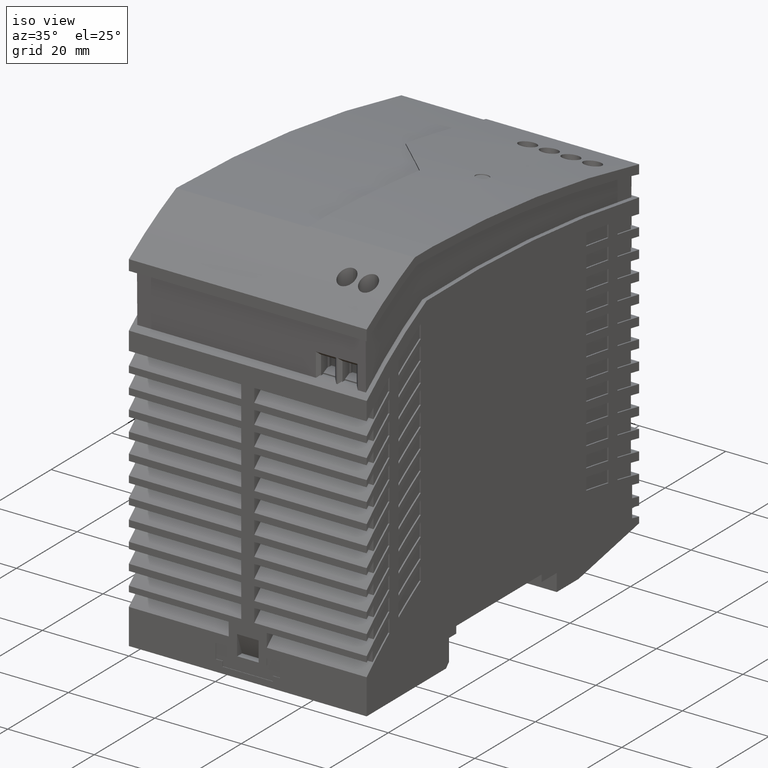
[diagram: clean part render]
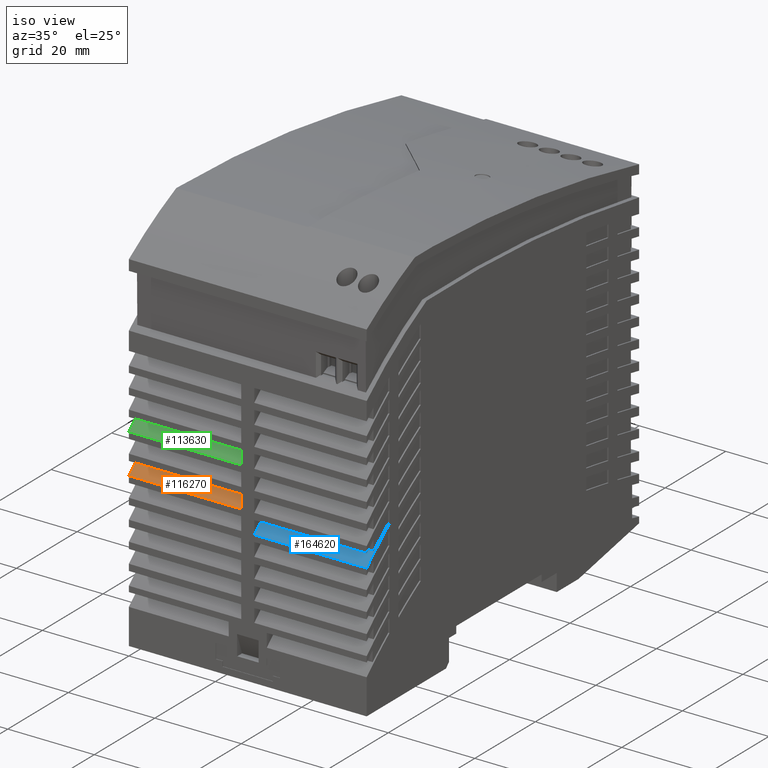
[diagram: same view with three faces highlighted in distinct colors, each labeled with its STEP entity id]
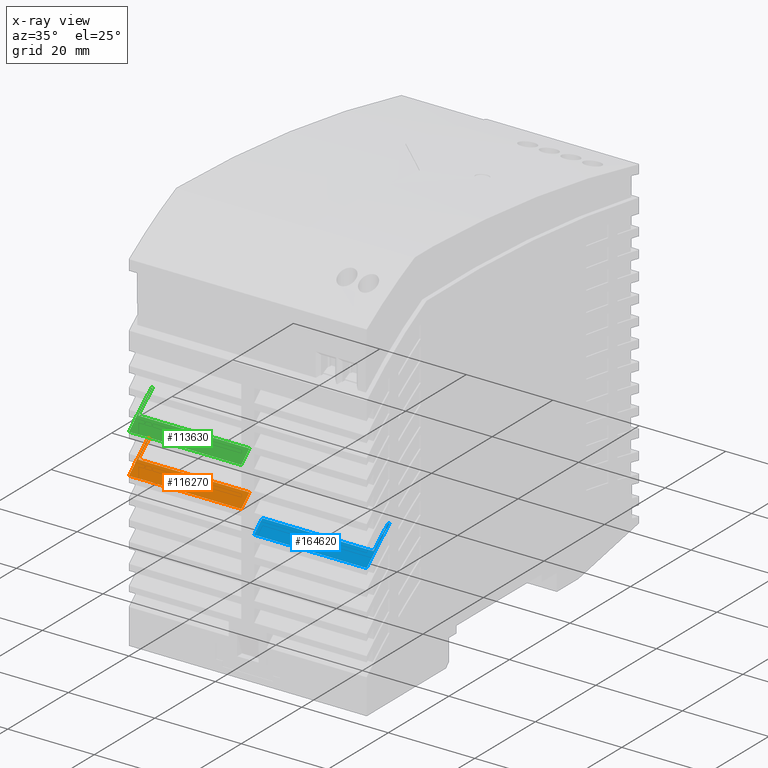
[diagram: x-ray of the same camera — body ghosted, the three highlighted faces saturated]
A machine part, iso view with three faces highlighted in distinct colors.
The next image is the same camera in x-ray (body ghosted, the three faces saturated) — at least one of them is partly hidden behind the body in this view.
Their STEP definitions:

[orange] entity #116270 — the highlighted cylindrical surface (partial cylindrical patch) has radius 111 mm, axis along (1, 0, 0).
#14500=CARTESIAN_POINT('',(30.4869845880775,-45.759020585182,-54.));
#14510=DIRECTION('',(0.,0.,1.));
#14520=DIRECTION('',(0.,1.,0.));
#14530=AXIS2_PLACEMENT_3D('',#14500,#14510,#14520);
#14540=CIRCLE('',#14530,110.999999999991);
#20450=CARTESIAN_POINT('',(-37.4715236073768,42.0056714261642,-54.));
#20460=VERTEX_POINT('',#20450);
#20490=CARTESIAN_POINT('',(-45.0015236073532,35.6196322079584,-54.));
#20500=VERTEX_POINT('',#20490);
#20510=EDGE_CURVE('',#20460,#20500,#14540,.T.);
#115270=CARTESIAN_POINT('',(-37.4715236073768,42.0056714261642,-53.7));
#115280=VERTEX_POINT('',#115270);
#115440=CARTESIAN_POINT('',(-42.3015236073671,38.0433246963183,-53.7));
#115450=VERTEX_POINT('',#115440);
#115480=CARTESIAN_POINT('',(30.4869845880775,-45.759020585182,-53.7));
#115490=DIRECTION('',(0.,0.,1.));
#115500=DIRECTION('',(0.,1.,0.));
#115510=AXIS2_PLACEMENT_3D('',#115480,#115490,#115500);
#115520=CIRCLE('',#115510,110.999999999991);
#115530=EDGE_CURVE('',#115280,#115450,#115520,.T.);
#115710=CARTESIAN_POINT('',(-37.4715236073768,42.0056714261642,-53.7));
#115720=DIRECTION('',(0.,0.,-1.));
#115730=VECTOR('',#115720,1.);
#115740=LINE('',#115710,#115730);
#115750=EDGE_CURVE('',#115280,#20460,#115740,.T.);
#115940=CARTESIAN_POINT('',(30.4869845880775,-45.759020585182,-53.7));
#115950=DIRECTION('',(0.,0.,1.));
#115960=DIRECTION('',(0.,1.,0.));
#115970=AXIS2_PLACEMENT_3D('',#115940,#115950,#115960);
#115980=CYLINDRICAL_SURFACE('',#115970,110.999999999991);
#115990=ORIENTED_EDGE('',*,*,#20510,.T.);
#116000=ORIENTED_EDGE('',*,*,#115750,.T.);
#116010=ORIENTED_EDGE('',*,*,#115530,.F.);
#116020=CARTESIAN_POINT('',(-42.3015236073671,38.0433246963183,-28.));
#116030=DIRECTION('',(0.,0.,-1.));
#116040=VECTOR('',#116030,1.);
#116050=LINE('',#116020,#116040);
#116060=CARTESIAN_POINT('',(-42.3015236073671,38.0433246963183,-28.));
#116070=VERTEX_POINT('',#116060);
#116080=EDGE_CURVE('',#116070,#115450,#116050,.T.);
#116090=ORIENTED_EDGE('',*,*,#116080,.T.);
#116100=CARTESIAN_POINT('',(30.4869845880775,-45.759020585182,-28.));
#116110=DIRECTION('',(0.,0.,1.));
#116120=DIRECTION('',(0.,1.,0.));
#116130=AXIS2_PLACEMENT_3D('',#116100,#116110,#116120);
#116140=CIRCLE('',#116130,110.999999999991);
#116150=CARTESIAN_POINT('',(-45.0015236073532,35.6196322079584,-28.));
#116160=VERTEX_POINT('',#116150);
#116170=EDGE_CURVE('',#116070,#116160,#116140,.T.);
#116180=ORIENTED_EDGE('',*,*,#116170,.F.);
#116190=CARTESIAN_POINT('',(-45.0015236073532,35.6196322079584,-25.));
#116200=DIRECTION('',(0.,0.,1.));
#116210=VECTOR('',#116200,1.);
#116220=LINE('',#116190,#116210);
#116230=EDGE_CURVE('',#20500,#116160,#116220,.T.);
#116240=ORIENTED_EDGE('',*,*,#116230,.T.);
#116250=EDGE_LOOP('',(#116240,#116180,#116090,#116010,#116000,#115990));
#116260=FACE_OUTER_BOUND('',#116250,.T.);
#116270=ADVANCED_FACE('',(#116260),#115980,.T.);

[blue] entity #164620 — the highlighted cylindrical surface (partial cylindrical patch) has radius 111 mm, axis along (1, 0, 0).
#46980=CARTESIAN_POINT('',(-45.0015236073532,31.0196322079584,1.));
#46990=VERTEX_POINT('',#46980);
#47020=CARTESIAN_POINT('',(30.4869845880943,-50.3590205852021,1.));
#47030=DIRECTION('',(0.,0.,1.));
#47040=DIRECTION('',(0.,1.,0.));
#47050=AXIS2_PLACEMENT_3D('',#47020,#47030,#47040);
#47060=CIRCLE('',#47050,111.000000000018);
#47070=CARTESIAN_POINT('',(-37.4715236073768,37.4056714261642,1.));
#47080=VERTEX_POINT('',#47070);
#47090=EDGE_CURVE('',#47080,#46990,#47060,.T.);
#122970=CARTESIAN_POINT('',(-45.0015236073532,31.0196322079584,-25.));
#122980=DIRECTION('',(0.,0.,1.));
#122990=VECTOR('',#122980,1.);
#123000=LINE('',#122970,#122990);
#157380=CARTESIAN_POINT('',(-42.3015236073671,33.4433246963183,-25.));
#157390=DIRECTION('',(0.,0.,1.));
#157400=VECTOR('',#157390,1.);
#157410=LINE('',#157380,#157400);
#157420=CARTESIAN_POINT('',(-42.3015236073671,33.4433246963182,-25.));
#157430=VERTEX_POINT('',#157420);
#157440=CARTESIAN_POINT('',(-42.3015236073671,33.4433246963183,
0.700000000000003));
#157450=VERTEX_POINT('',#157440);
#157460=EDGE_CURVE('',#157430,#157450,#157410,.T.);
#161540=CARTESIAN_POINT('',(-45.0015236073532,31.0196322079584,-25.));
#161550=VERTEX_POINT('',#161540);
#161580=EDGE_CURVE('',#161550,#46990,#123000,.T.);
#164180=CARTESIAN_POINT('',(30.4869845880943,-50.3590205852021,-25.));
#164190=DIRECTION('',(0.,0.,1.));
#164200=DIRECTION('',(0.,1.,0.));
#164210=AXIS2_PLACEMENT_3D('',#164180,#164190,#164200);
#164220=CIRCLE('',#164210,111.000000000018);
#164230=EDGE_CURVE('',#157430,#161550,#164220,.T.);
#164360=CARTESIAN_POINT('',(30.4869845880943,-50.3590205852021,-25.));
#164370=DIRECTION('',(0.,0.,1.));
#164380=DIRECTION('',(0.,1.,0.));
#164390=AXIS2_PLACEMENT_3D('',#164360,#164370,#164380);
#164400=CYLINDRICAL_SURFACE('',#164390,111.000000000018);
#164410=ORIENTED_EDGE('',*,*,#161580,.T.);
#164420=ORIENTED_EDGE('',*,*,#164230,.T.);
#164430=ORIENTED_EDGE('',*,*,#157460,.F.);
#164440=CARTESIAN_POINT('',(30.4869845880942,-50.3590205852021,
0.700000000000003));
#164450=DIRECTION('',(0.,0.,1.));
#164460=DIRECTION('',(0.,1.,0.));
#164470=AXIS2_PLACEMENT_3D('',#164440,#164450,#164460);
#164480=CIRCLE('',#164470,111.000000000018);
#164490=CARTESIAN_POINT('',(-37.4715236073769,37.4056714261643,
0.700000000000003));
#164500=VERTEX_POINT('',#164490);
#164510=EDGE_CURVE('',#164500,#157450,#164480,.T.);
#164520=ORIENTED_EDGE('',*,*,#164510,.T.);
#164530=CARTESIAN_POINT('',(-37.4715236073769,37.4056714261643,
0.700000000000003));
#164540=DIRECTION('',(0.,0.,1.));
#164550=VECTOR('',#164540,1.);
#164560=LINE('',#164530,#164550);
#164570=EDGE_CURVE('',#164500,#47080,#164560,.T.);
#164580=ORIENTED_EDGE('',*,*,#164570,.F.);
#164590=ORIENTED_EDGE('',*,*,#47090,.F.);
#164600=EDGE_LOOP('',(#164590,#164580,#164520,#164430,#164420,#164410));
#164610=FACE_OUTER_BOUND('',#164600,.T.);
#164620=ADVANCED_FACE('',(#164610),#164400,.T.);

[green] entity #113630 — the highlighted cylindrical surface (partial cylindrical patch) has radius 111 mm, axis along (1, 0, 0).
#13780=CARTESIAN_POINT('',(30.4869845880638,-36.5590205851661,-54.));
#13790=DIRECTION('',(0.,0.,1.));
#13800=DIRECTION('',(0.,1.,0.));
#13810=AXIS2_PLACEMENT_3D('',#13780,#13790,#13800);
#13820=CIRCLE('',#13810,110.999999999971);
#20050=CARTESIAN_POINT('',(-37.4715236073769,51.2056714261642,-54.));
#20060=VERTEX_POINT('',#20050);
#20090=CARTESIAN_POINT('',(-45.0015236073532,44.8196322079584,-54.));
#20100=VERTEX_POINT('',#20090);
#20110=EDGE_CURVE('',#20060,#20100,#13820,.T.);
#111920=CARTESIAN_POINT('',(-42.3015236073671,47.2433246963184,-53.7));
#111930=VERTEX_POINT('',#111920);
#111960=CARTESIAN_POINT('',(30.4869845880638,-36.5590205851661,-53.7));
#111970=DIRECTION('',(0.,0.,1.));
#111980=DIRECTION('',(0.,1.,0.));
#111990=AXIS2_PLACEMENT_3D('',#111960,#111970,#111980);
#112000=CIRCLE('',#111990,110.999999999971);
#112010=CARTESIAN_POINT('',(-37.4715236073769,51.2056714261642,-53.7));
#112020=VERTEX_POINT('',#112010);
#112030=EDGE_CURVE('',#112020,#111930,#112000,.T.);
#113120=CARTESIAN_POINT('',(-37.4715236073769,51.2056714261643,-53.7));
#113130=DIRECTION('',(0.,0.,-1.));
#113140=VECTOR('',#113130,1.);
#113150=LINE('',#113120,#113140);
#113160=EDGE_CURVE('',#112020,#20060,#113150,.T.);
#113300=CARTESIAN_POINT('',(30.4869845880638,-36.5590205851661,-53.7));
#113310=DIRECTION('',(0.,0.,1.));
#113320=DIRECTION('',(0.,1.,0.));
#113330=AXIS2_PLACEMENT_3D('',#113300,#113310,#113320);
#113340=CYLINDRICAL_SURFACE('',#113330,110.999999999971);
#113350=ORIENTED_EDGE('',*,*,#20110,.T.);
#113360=ORIENTED_EDGE('',*,*,#113160,.T.);
#113370=ORIENTED_EDGE('',*,*,#112030,.F.);
#113380=CARTESIAN_POINT('',(-42.3015236073671,47.2433246963183,-28.));
#113390=DIRECTION('',(0.,0.,-1.));
#113400=VECTOR('',#113390,1.);
#113410=LINE('',#113380,#113400);
#113420=CARTESIAN_POINT('',(-42.3015236073671,47.2433246963184,-28.));
#113430=VERTEX_POINT('',#113420);
#113440=EDGE_CURVE('',#113430,#111930,#113410,.T.);
#113450=ORIENTED_EDGE('',*,*,#113440,.T.);
#113460=CARTESIAN_POINT('',(30.4869845880638,-36.5590205851661,-28.));
#113470=DIRECTION('',(0.,0.,1.));
#113480=DIRECTION('',(0.,1.,0.));
#113490=AXIS2_PLACEMENT_3D('',#113460,#113470,#113480);
#113500=CIRCLE('',#113490,110.999999999971);
#113510=CARTESIAN_POINT('',(-45.0015236073532,44.8196322079584,-28.));
#113520=VERTEX_POINT('',#113510);
#113530=EDGE_CURVE('',#113430,#113520,#113500,.T.);
#113540=ORIENTED_EDGE('',*,*,#113530,.F.);
#113550=CARTESIAN_POINT('',(-45.0015236073532,44.8196322079584,-25.));
#113560=DIRECTION('',(0.,0.,1.));
#113570=VECTOR('',#113560,1.);
#113580=LINE('',#113550,#113570);
#113590=EDGE_CURVE('',#20100,#113520,#113580,.T.);
#113600=ORIENTED_EDGE('',*,*,#113590,.T.);
#113610=EDGE_LOOP('',(#113600,#113540,#113450,#113370,#113360,#113350));
#113620=FACE_OUTER_BOUND('',#113610,.T.);
#113630=ADVANCED_FACE('',(#113620),#113340,.T.);